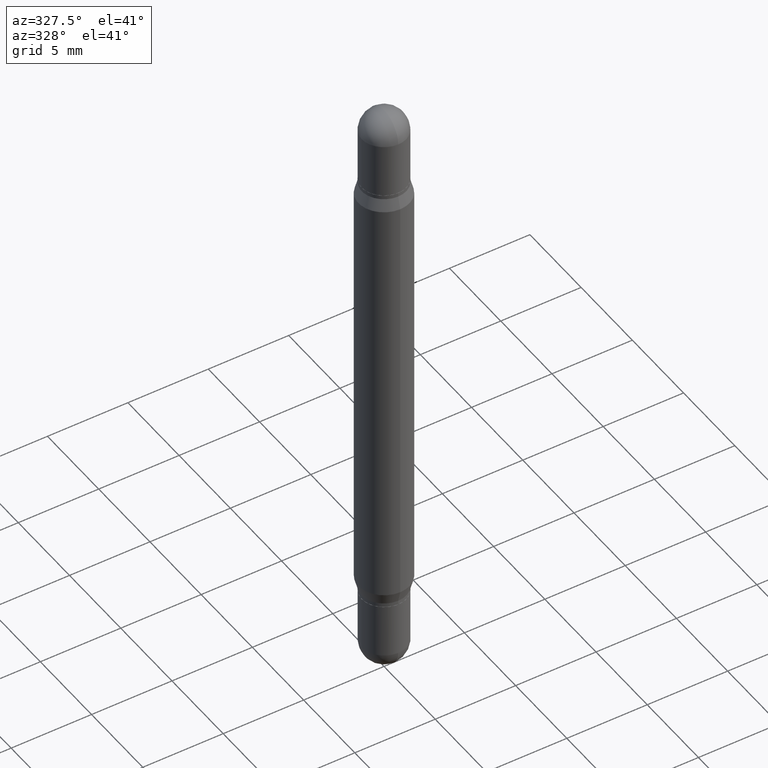
[diagram: clean part render]
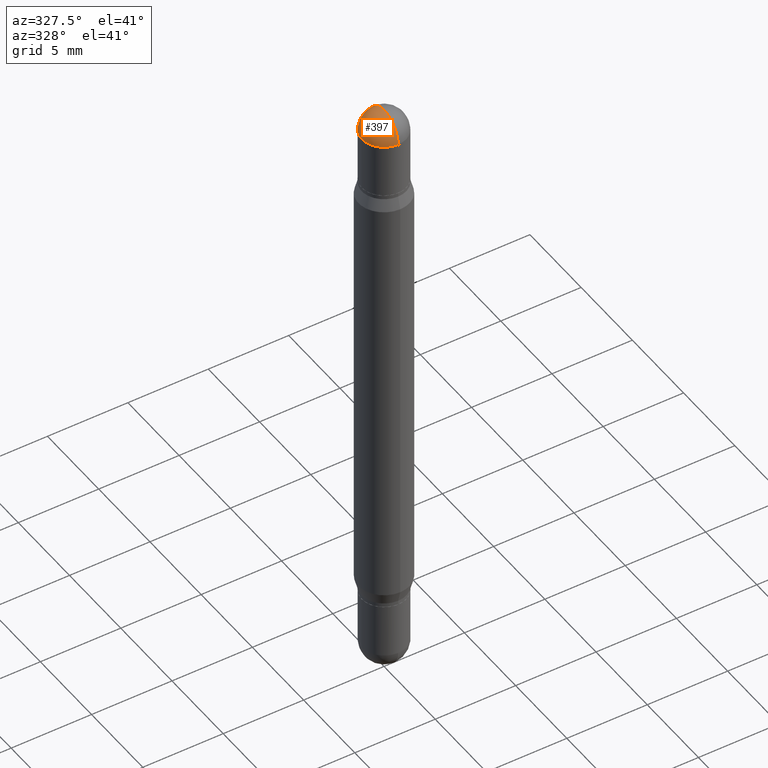
[diagram: same view with one face highlighted and labeled with its STEP entity id]
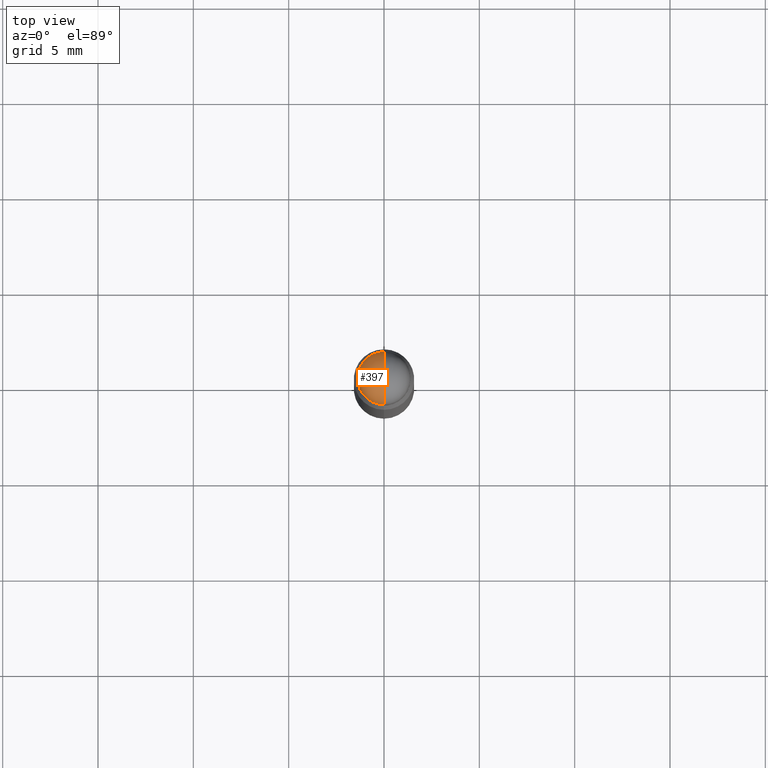
[diagram: same view with one face highlighted and labeled with its STEP entity id]
A machine part, auxiliary view. The second image highlights one B-rep face of the part: STEP entity #397.
A second angle (top view) of the same face is appended — the face is thin or edge-on in the first view.
In plain terms, the highlighted spherical surface has radius 1.3894 mm.
Its self-contained STEP definition (entity closure, byte-faithful):
#8 = AXIS2_PLACEMENT_3D ( 'NONE', #410, #838, #321 ) ;
#35 = DIRECTION ( 'NONE',  ( 1.000000000000000000, -6.982962677686268288E-15, 0.000000000000000000 ) ) ;
#73 = CIRCLE ( 'NONE', #732, 0.05470000000000000556 ) ;
#108 = CIRCLE ( 'NONE', #632, 0.05470000000000019291 ) ;
#112 = DIRECTION ( 'NONE',  ( 2.445468806185136597E-29, 3.479614466977828254E-15, 1.000000000000000000 ) ) ;
#120 = EDGE_CURVE ( 'NONE', #695, #1038, #988, .T. ) ;
#175 = ORIENTED_EDGE ( 'NONE', *, *, #814, .T. ) ;
#188 = DIRECTION ( 'NONE',  ( -1.000000000000000000, 6.982962677686265922E-15, 1.566701062080020624E-31 ) ) ;
#199 = DIRECTION ( 'NONE',  ( -1.000000000000000000, 6.860497997771530774E-15, 5.827999781331232286E-31 ) ) ;
#265 = CARTESIAN_POINT ( 'NONE',  ( -3.819680584694040760E-16, -0.05470000000000030393, -0.05470000000000018597 ) ) ;
#287 = CARTESIAN_POINT ( 'NONE',  ( 3.529758305977566399E-29, -2.059338832340114475E-16, -0.05470000000000037332 ) ) ;
#298 = CARTESIAN_POINT ( 'NONE',  ( 3.752692404781387717E-16, 0.05469999999999989454, -0.05470000000000056067 ) ) ;
#321 = DIRECTION ( 'NONE',  ( 1.000000000000000000, -6.982962677686268288E-15, 0.000000000000000000 ) ) ;
#350 = CARTESIAN_POINT ( 'NONE',  ( 3.529758305977566399E-29, -2.059338832340114475E-16, -0.05470000000000037332 ) ) ;
#397 = ADVANCED_FACE ( 'NONE', ( #697 ), #609, .T. ) ;
#410 = CARTESIAN_POINT ( 'NONE',  ( 3.534436065579377749E-29, -1.992350652426753183E-16, -0.05470000000000037332 ) ) ;
#464 = VERTEX_POINT ( 'NONE', #645 ) ;
#524 = DIRECTION ( 'NONE',  ( -6.982962677686265922E-15, -1.000000000000000000, 3.433538383261744671E-15 ) ) ;
#583 = DIRECTION ( 'NONE',  ( 1.000000000000000000, -6.982962677686265922E-15, -1.566701062080016245E-31 ) ) ;
#591 = ORIENTED_EDGE ( 'NONE', *, *, #1011, .F. ) ;
#609 = SPHERICAL_SURFACE ( 'NONE', #945, 0.05470000000000019291 ) ;
#632 = AXIS2_PLACEMENT_3D ( 'NONE', #350, #583, #948 ) ;
#641 = CIRCLE ( 'NONE', #1022, 0.05470000000000019291 ) ;
#645 = CARTESIAN_POINT ( 'NONE',  ( 3.661186569874987869E-29, -1.894838088599157718E-17, -1.792775245842172799E-16 ) ) ;
#695 = VERTEX_POINT ( 'NONE', #1044 ) ;
#697 = FACE_OUTER_BOUND ( 'NONE', #951, .T. ) ;
#732 = AXIS2_PLACEMENT_3D ( 'NONE', #808, #112, #35 ) ;
#748 = VERTEX_POINT ( 'NONE', #298 ) ;
#758 = ORIENTED_EDGE ( 'NONE', *, *, #888, .T. ) ;
#795 = DIRECTION ( 'NONE',  ( -6.860497997771530774E-15, -1.000000000000000000, 0.000000000000000000 ) ) ;
#808 = CARTESIAN_POINT ( 'NONE',  ( 3.534436065579377749E-29, -1.992350652426753183E-16, -0.05470000000000037332 ) ) ;
#814 = EDGE_CURVE ( 'NONE', #748, #695, #73, .T. ) ;
#838 = DIRECTION ( 'NONE',  ( 2.445468806185136597E-29, 3.479614466977828254E-15, 1.000000000000000000 ) ) ;
#875 = ORIENTED_EDGE ( 'NONE', *, *, #120, .T. ) ;
#888 = EDGE_CURVE ( 'NONE', #464, #748, #641, .T. ) ;
#945 = AXIS2_PLACEMENT_3D ( 'NONE', #963, #188, #524 ) ;
#948 = DIRECTION ( 'NONE',  ( 6.982962677686266711E-15, 1.000000000000000000, 0.000000000000000000 ) ) ;
#951 = EDGE_LOOP ( 'NONE', ( #591, #758, #175, #875 ) ) ;
#963 = CARTESIAN_POINT ( 'NONE',  ( 3.529758305977566399E-29, -2.059338832340114475E-16, -0.05470000000000037332 ) ) ;
#988 = CIRCLE ( 'NONE', #8, 0.05470000000000000556 ) ;
#1011 = EDGE_CURVE ( 'NONE', #464, #1038, #108, .T. ) ;
#1022 = AXIS2_PLACEMENT_3D ( 'NONE', #287, #199, #795 ) ;
#1038 = VERTEX_POINT ( 'NONE', #265 ) ;
#1044 = CARTESIAN_POINT ( 'NONE',  ( -0.05470000000000000556, -5.414232175515625545E-17, -0.05470000000000037332 ) ) ;